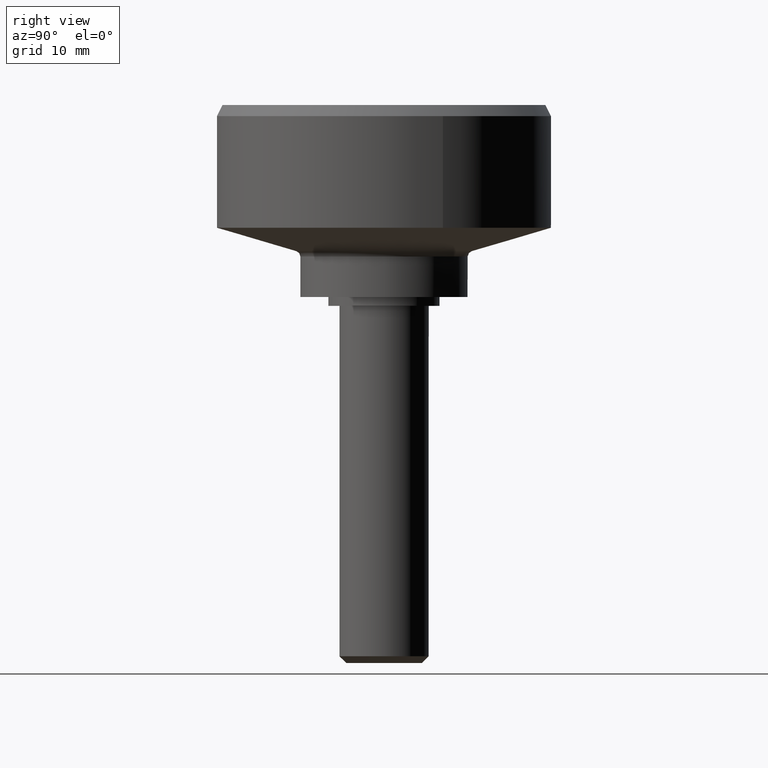
[diagram: clean part render]
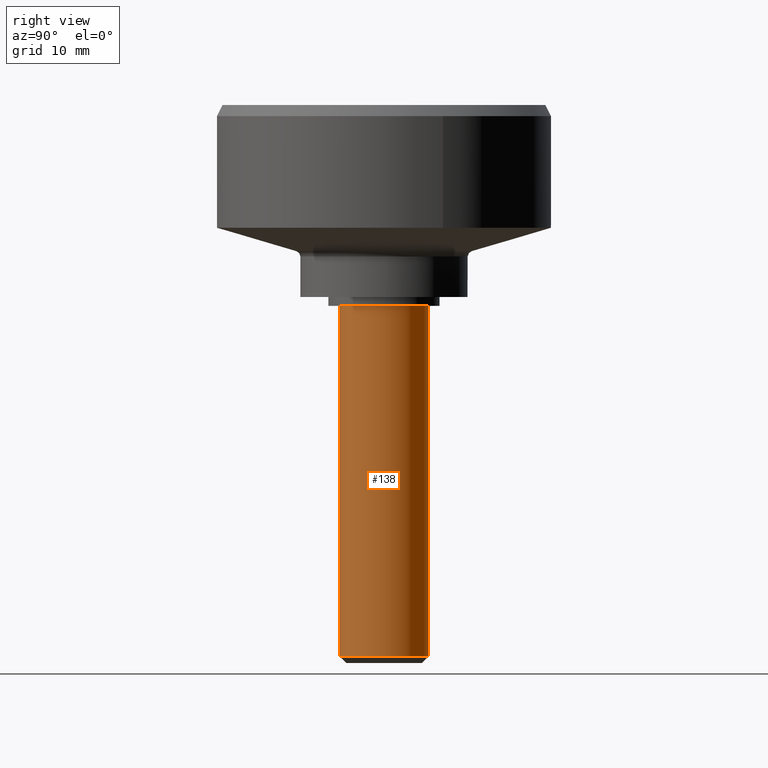
[diagram: same view with one face highlighted and labeled with its STEP entity id]
A machine part, right view. The second image highlights one B-rep face of the part: STEP entity #138.
In plain terms, the highlighted face is a freeform B-spline surface patch.
Its self-contained STEP definition (entity closure, byte-faithful):
#44=CARTESIAN_POINT('',(0.456402658961442,3.973876773742854,0.784999850000003));
#45=CARTESIAN_POINT('',(3.787823839652829,3.591260610344325,0.784999850000003));
#46=CARTESIAN_POINT('',(3.992539193687467,0.244194158139428,0.784999850000003));
#47=CARTESIAN_POINT('',(4.236733351826894,-3.748345035548039,0.784999850000003));
#48=CARTESIAN_POINT('',(0.244194158139428,-3.992539193687467,0.784999850000003));
#49=CARTESIAN_POINT('',(0.456402658961442,3.973876773742854,-32.204618846250099));
#50=CARTESIAN_POINT('',(3.787823839652829,3.591260610344325,-32.204618846250106));
#51=CARTESIAN_POINT('',(3.992539193687467,0.244194158139428,-32.204618846250114));
#52=CARTESIAN_POINT('',(4.236733351826894,-3.748345035548039,-32.204618846250106));
#53=CARTESIAN_POINT('',(0.244194158139428,-3.992539193687467,-32.204618846250114));
#61=(BOUNDED_SURFACE()B_SPLINE_SURFACE(2,1,((#44,#49),(#45,#50),(#46,#51),(#47,#52),(#48,#53)),.UNSPECIFIED.,.F.,.F.,.U.)B_SPLINE_SURFACE_WITH_KNOTS((3,2,3),(2,2),(0.0,5.832126958213174,12.459543956182690),(0.0,32.989618696250112),.UNSPECIFIED.)GEOMETRIC_REPRESENTATION_ITEM()RATIONAL_B_SPLINE_SURFACE(((0.938140952186599,0.938140952186599),(0.742253967444162,0.742253967444162),(1.0,1.0),(0.707106781186548,0.707106781186548),(1.0,1.0)))REPRESENTATION_ITEM('')SURFACE());
#62=CARTESIAN_POINT('',(0.456402659124896,3.973876773724082,-31.399994000000099));
#63=VERTEX_POINT('',#62);
#64=CARTESIAN_POINT('',(4.0,0.0,-31.399994000000099));
#65=VERTEX_POINT('',#64);
#66=CARTESIAN_POINT('',(0.456402659124896,3.973876773724081,-31.399994000000103));
#67=CARTESIAN_POINT('',(4.000000000000000,3.566892022580297,-31.399994000000103));
#68=CARTESIAN_POINT('',(4.0,0.0,-31.399994000000099));
#76=(BOUNDED_CURVE()B_SPLINE_CURVE(2,(#66,#67,#68),.UNSPECIFIED.,.F.,.U.)B_SPLINE_CURVE_WITH_KNOTS((3,3),(0.269767755890531,0.500000000000000),.UNSPECIFIED.)CURVE()GEOMETRIC_REPRESENTATION_ITEM()RATIONAL_B_SPLINE_CURVE((0.957343736433201,0.730266147792533,1.0))REPRESENTATION_ITEM(''));
#77=EDGE_CURVE('',#63,#65,#76,.T.);
#78=ORIENTED_EDGE('',*,*,#77,.F.);
#79=CARTESIAN_POINT('',(0.456402658981901,3.973876773740505,-7.100573E-016));
#80=VERTEX_POINT('',#79);
#81=CARTESIAN_POINT('',(0.456402658981901,3.973876773740505,-7.100573E-016));
#82=CARTESIAN_POINT('',(0.456402659124896,3.973876773724082,-31.399994000000099));
#83=QUASI_UNIFORM_CURVE('',1,(#81,#82),.UNSPECIFIED.,.F.,.U.);
#84=EDGE_CURVE('',#80,#63,#83,.T.);
#85=ORIENTED_EDGE('',*,*,#84,.F.);
#86=CARTESIAN_POINT('',(4.0,0.0,0.0));
#87=VERTEX_POINT('',#86);
#88=CARTESIAN_POINT('',(0.456402658981901,3.973876773740505,-7.100573E-016));
#89=CARTESIAN_POINT('',(4.000000000000000,3.566892022838685,0.0));
#90=CARTESIAN_POINT('',(4.0,0.0,0.0));
#98=(BOUNDED_CURVE()B_SPLINE_CURVE(2,(#88,#89,#90),.UNSPECIFIED.,.F.,.U.)B_SPLINE_CURVE_WITH_KNOTS((3,3),(0.269767755878352,0.500000000000000),.UNSPECIFIED.)CURVE()GEOMETRIC_REPRESENTATION_ITEM()RATIONAL_B_SPLINE_CURVE((0.957343736457226,0.730266147778264,1.0))REPRESENTATION_ITEM(''));
#99=EDGE_CURVE('',#80,#87,#98,.T.);
#100=ORIENTED_EDGE('',*,*,#99,.T.);
#101=CARTESIAN_POINT('',(0.244194158160606,-3.992539193686172,1.110223E-015));
#102=VERTEX_POINT('',#101);
#103=CARTESIAN_POINT('',(4.0,0.0,0.0));
#104=CARTESIAN_POINT('',(4.000000000000001,-3.762824267582779,0.0));
#105=CARTESIAN_POINT('',(0.244194158160606,-3.992539193686172,1.110223E-015));
#113=(BOUNDED_CURVE()B_SPLINE_CURVE(2,(#103,#104,#105),.UNSPECIFIED.,.F.,.U.)B_SPLINE_CURVE_WITH_KNOTS((3,3),(0.500000000000000,0.739332962240137),.UNSPECIFIED.)CURVE()GEOMETRIC_REPRESENTATION_ITEM()RATIONAL_B_SPLINE_CURVE((1.0,0.719603993285311,0.976072041669278))REPRESENTATION_ITEM(''));
#114=EDGE_CURVE('',#87,#102,#113,.T.);
#115=ORIENTED_EDGE('',*,*,#114,.T.);
#116=CARTESIAN_POINT('',(0.279015270581242,-3.990104264312848,-31.399993999992869));
#117=VERTEX_POINT('',#116);
#118=CARTESIAN_POINT('',(0.244194158160606,-3.992539193686172,1.110223E-015));
#119=CARTESIAN_POINT('',(0.279015270581242,-3.990104264312848,-31.399993999992869));
#120=QUASI_UNIFORM_CURVE('',1,(#118,#119),.UNSPECIFIED.,.F.,.U.);
#121=EDGE_CURVE('',#102,#117,#120,.T.);
#122=ORIENTED_EDGE('',*,*,#121,.T.);
#123=CARTESIAN_POINT('',(4.0,0.0,-31.399994000000099));
#124=CARTESIAN_POINT('',(3.999994687774640,-3.729984376137391,-31.399993999996482));
#125=CARTESIAN_POINT('',(0.279015270581242,-3.990104264312848,-31.399993999992866));
#133=(BOUNDED_CURVE()B_SPLINE_CURVE(2,(#123,#124,#125),.UNSPECIFIED.,.F.,.U.)B_SPLINE_CURVE_WITH_KNOTS((3,3),(0.500000000000000,0.737829682994576),.UNSPECIFIED.)CURVE()GEOMETRIC_REPRESENTATION_ITEM()RATIONAL_B_SPLINE_CURVE((1.0,0.721365194473342,0.972871408703968))REPRESENTATION_ITEM(''));
#134=EDGE_CURVE('',#65,#117,#133,.T.);
#135=ORIENTED_EDGE('',*,*,#134,.F.);
#136=EDGE_LOOP('',(#78,#85,#100,#115,#122,#135));
#137=FACE_OUTER_BOUND('',#136,.T.);
#138=ADVANCED_FACE('',(#137),#61,.T.);